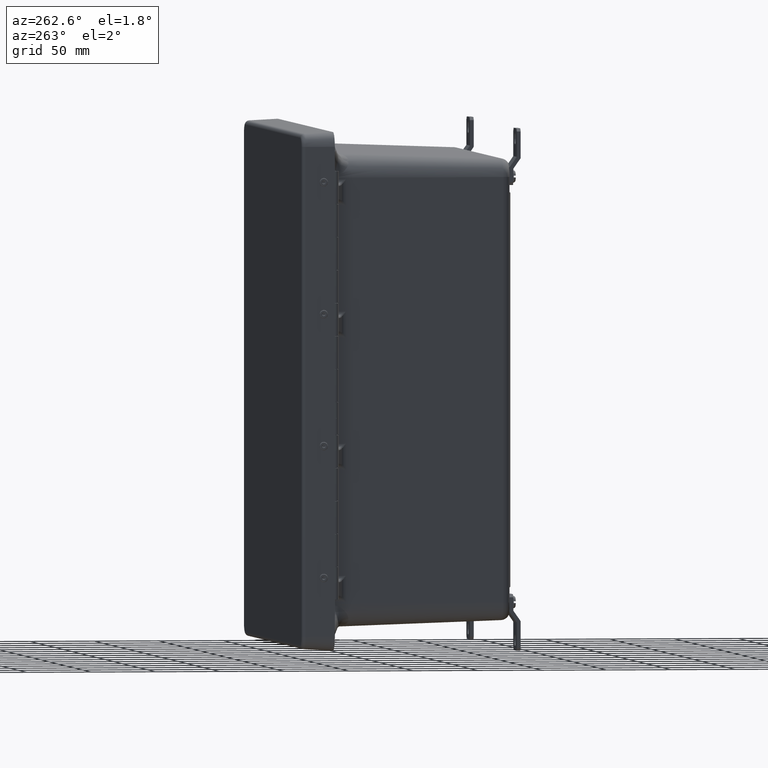
[diagram: clean part render]
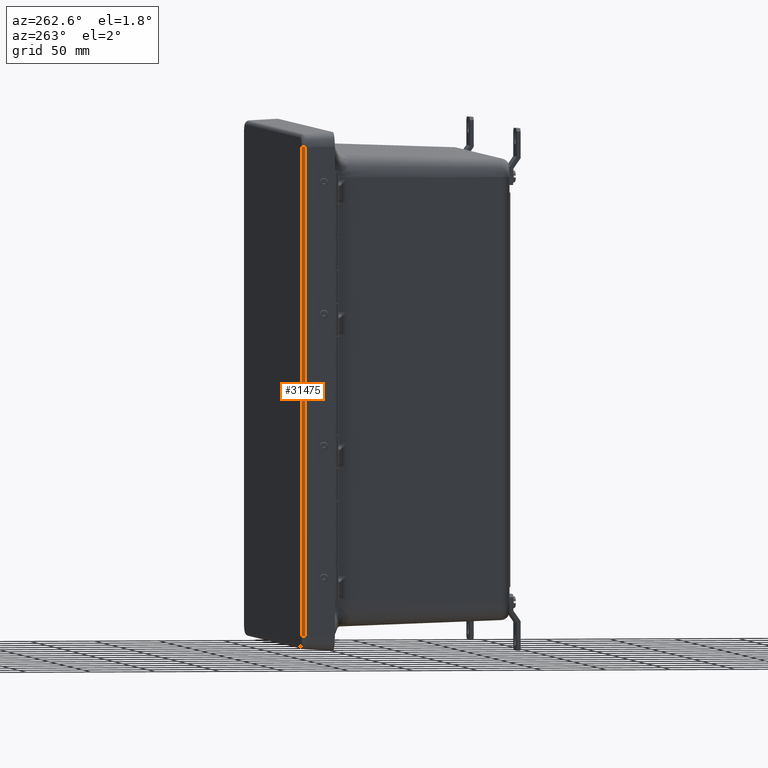
[diagram: same view with one face highlighted and labeled with its STEP entity id]
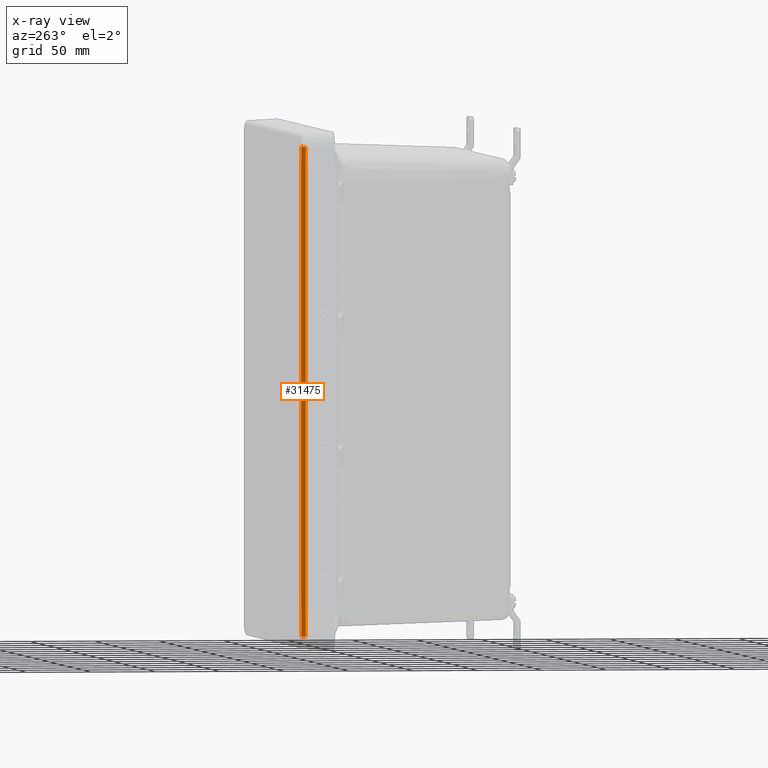
[diagram: x-ray of the same camera — body ghosted, the highlighted face saturated]
A machine part, auxiliary view. The second image highlights one B-rep face of the part: STEP entity #31475.
The next image is the same camera in x-ray: the body ghosted, the highlighted face saturated — about 0% of this face is hidden behind the body in this view.
In plain terms, the highlighted cylindrical surface (edge-blend (fillet) strip) has radius 3.175 mm, axis along (-0, 0, 1).
Its self-contained STEP definition (entity closure, byte-faithful):
#203 = CARTESIAN_POINT ( 'NONE',  ( 7.426000000000001000, 0.8750000000000000000, 6.754971649877597400 ) ) ;
#939 = ORIENTED_EDGE ( 'NONE', *, *, #48179, .F. ) ;
#4906 = AXIS2_PLACEMENT_3D ( 'NONE', #44555, #53667, #16184 ) ;
#4959 = DIRECTION ( 'NONE',  ( 8.741913579725610700E-015, 0.0000000000000000000, -1.000000000000000000 ) ) ;
#8630 = CARTESIAN_POINT ( 'NONE',  ( -7.425999999999995700, 0.8750000000000000000, 6.754971649877597400 ) ) ;
#9130 = LINE ( 'NONE', #26651, #34306 ) ;
#13255 = AXIS2_PLACEMENT_3D ( 'NONE', #203, #33329, #4959 ) ;
#13393 = DIRECTION ( 'NONE',  ( 0.0000000000000000000, 0.0000000000000000000, -1.000000000000000000 ) ) ;
#14586 = VERTEX_POINT ( 'NONE', #37539 ) ;
#16184 = DIRECTION ( 'NONE',  ( 0.0000000000000000000, 0.0000000000000000000, -1.000000000000000000 ) ) ;
#20489 = EDGE_CURVE ( 'NONE', #47336, #14586, #33942, .T. ) ;
#22142 = LINE ( 'NONE', #49922, #34771 ) ;
#24376 = CIRCLE ( 'NONE', #13255, 0.1250000000000004400 ) ;
#24412 = EDGE_CURVE ( 'NONE', #44257, #14586, #9130, .T. ) ;
#26651 = CARTESIAN_POINT ( 'NONE',  ( -7.425999999999995700, 0.8815419945303678600, 6.879800341721919600 ) ) ;
#31475 = ADVANCED_FACE ( 'NONE', ( #56715 ), #31516, .T. ) ;
#31516 = CYLINDRICAL_SURFACE ( 'NONE', #4906, 0.1250000000000004400 ) ;
#31960 = EDGE_LOOP ( 'NONE', ( #37734, #32677, #939, #51014 ) ) ;
#32677 = ORIENTED_EDGE ( 'NONE', *, *, #24412, .F. ) ;
#33329 = DIRECTION ( 'NONE',  ( 1.000000000000000000, -0.0000000000000000000, 8.753910509840912200E-015 ) ) ;
#33942 = CIRCLE ( 'NONE', #49855, 0.1250000000000004400 ) ;
#34306 = VECTOR ( 'NONE', #50687, 39.37007874015748100 ) ;
#34771 = VECTOR ( 'NONE', #40410, 39.37007874015748100 ) ;
#37539 = CARTESIAN_POINT ( 'NONE',  ( -7.425999999999995700, 0.8815419945303677500, 6.879800341721919600 ) ) ;
#37734 = ORIENTED_EDGE ( 'NONE', *, *, #20489, .T. ) ;
#40410 = DIRECTION ( 'NONE',  ( 1.000000000000000000, -0.0000000000000000000, -0.0000000000000000000 ) ) ;
#41754 = DIRECTION ( 'NONE',  ( 1.000000000000000000, 0.0000000000000000000, 0.0000000000000000000 ) ) ;
#44257 = VERTEX_POINT ( 'NONE', #52586 ) ;
#44555 = CARTESIAN_POINT ( 'NONE',  ( -7.425999999999999300, 0.8750000000000000000, 6.754971649877597400 ) ) ;
#47336 = VERTEX_POINT ( 'NONE', #52289 ) ;
#47905 = EDGE_CURVE ( 'NONE', #47336, #50289, #22142, .T. ) ;
#48179 = EDGE_CURVE ( 'NONE', #50289, #44257, #24376, .T. ) ;
#49855 = AXIS2_PLACEMENT_3D ( 'NONE', #8630, #41754, #13393 ) ;
#49922 = CARTESIAN_POINT ( 'NONE',  ( 7.425999999999994800, 1.000000000000000000, 6.754971649877597400 ) ) ;
#50289 = VERTEX_POINT ( 'NONE', #51147 ) ;
#50687 = DIRECTION ( 'NONE',  ( -1.000000000000000000, -0.0000000000000000000, -0.0000000000000000000 ) ) ;
#51014 = ORIENTED_EDGE ( 'NONE', *, *, #47905, .F. ) ;
#51147 = CARTESIAN_POINT ( 'NONE',  ( 7.426000000000001000, 1.000000000000000000, 6.754971649877597400 ) ) ;
#52289 = CARTESIAN_POINT ( 'NONE',  ( -7.425999999999995700, 1.000000000000000000, 6.754971649877597400 ) ) ;
#52586 = CARTESIAN_POINT ( 'NONE',  ( 7.426000000000000200, 0.8815419945303677500, 6.879800341721919600 ) ) ;
#53667 = DIRECTION ( 'NONE',  ( 1.000000000000000000, 0.0000000000000000000, 0.0000000000000000000 ) ) ;
#56715 = FACE_OUTER_BOUND ( 'NONE', #31960, .T. ) ;